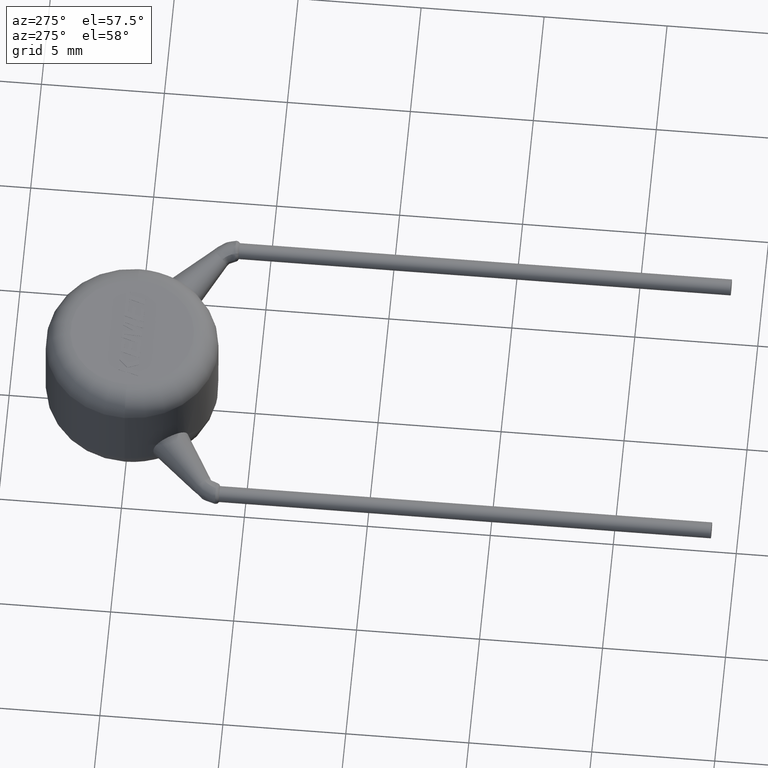
[diagram: clean part render]
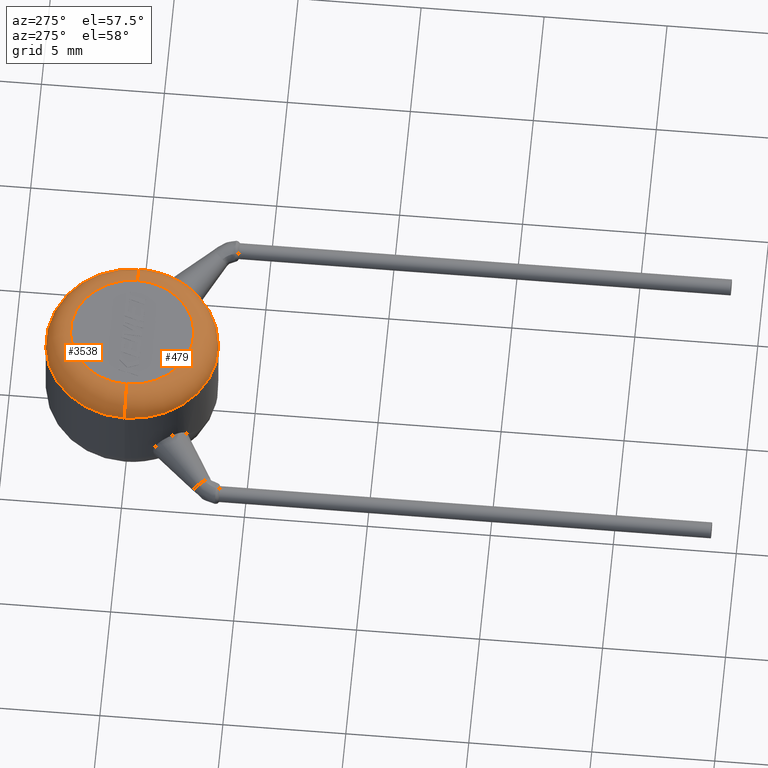
[diagram: same view with one multi-face feature highlighted, each face labeled with its STEP entity id]
A machine part, auxiliary view. The highlighted faces form ONE feature: a constant-radius fillet chain: 2 tangent blend faces with common blend radius 1 mm. The faces share edges in the B-rep.
Their STEP definitions:
[1] entity #479 (Torus):
#103 = CARTESIAN_POINT ( 'NONE',  ( 0.0000000000000000000, 0.0000000000000000000, 4.000000000000000000 ) ) ;
#122 = EDGE_LOOP ( 'NONE', ( #420, #1706, #3079, #1756, #787, #381, #3717 ) ) ;
#165 = CARTESIAN_POINT ( 'NONE',  ( 2.647007929378197400, -2.142943265732769800, 4.438028884743517600 ) ) ;
#171 = CARTESIAN_POINT ( 'NONE',  ( 3.243255533879262600, -1.296094057077863000, 4.121064896634989900 ) ) ;
#198 = CARTESIAN_POINT ( 'NONE',  ( 3.124308428701029900, -1.446657707018462500, 4.347111070492593900 ) ) ;
#381 = ORIENTED_EDGE ( 'NONE', *, *, #1070, .T. ) ;
#420 = ORIENTED_EDGE ( 'NONE', *, *, #1347, .F. ) ;
#425 = EDGE_CURVE ( 'NONE', #2062, #545, #1619, .T. ) ;
#479 = ADVANCED_FACE ( 'NONE', ( #3001 ), #2341, .T. ) ;
#480 = DIRECTION ( 'NONE',  ( 1.000000000000000000, 0.0000000000000000000, 0.0000000000000000000 ) ) ;
#526 = DIRECTION ( 'NONE',  ( -1.000000000000000000, 1.224646799147353500E-016, 0.0000000000000000000 ) ) ;
#545 = VERTEX_POINT ( 'NONE', #2828 ) ;
#561 = CARTESIAN_POINT ( 'NONE',  ( -2.500000000000000000, 3.061616997868383100E-016, 4.000000000000000000 ) ) ;
#584 = DIRECTION ( 'NONE',  ( 0.0000000000000000000, 0.0000000000000000000, -1.000000000000000000 ) ) ;
#617 = DIRECTION ( 'NONE',  ( 0.0000000000000000000, -1.000000000000000000, 0.0000000000000000000 ) ) ;
#666 = VERTEX_POINT ( 'NONE', #3219 ) ;
#731 = CIRCLE ( 'NONE', #3753, 3.500000000000000000 ) ;
#736 = CARTESIAN_POINT ( 'NONE',  ( 0.0000000000000000000, 0.0000000000000000000, 4.000000000000000000 ) ) ;
#787 = ORIENTED_EDGE ( 'NONE', *, *, #4064, .F. ) ;
#809 = CARTESIAN_POINT ( 'NONE',  ( 2.475472572420432300, -2.474274750951107800, 3.999999999999968900 ) ) ;
#838 = EDGE_CURVE ( 'NONE', #666, #2904, #3709, .T. ) ;
#860 = CARTESIAN_POINT ( 'NONE',  ( 3.274916067101236300, -1.234878436706290600, 4.000000000000000000 ) ) ;
#870 = CARTESIAN_POINT ( 'NONE',  ( 2.509829295452374900, -2.439901395481547400, 4.140103164255030800 ) ) ;
#1070 = EDGE_CURVE ( 'NONE', #2419, #545, #1952, .T. ) ;
#1126 = CARTESIAN_POINT ( 'NONE',  ( 3.199557605835435100, -1.364854437402160300, 4.244556331912546600 ) ) ;
#1133 = CARTESIAN_POINT ( 'NONE',  ( 3.243255533879262600, -1.296094057077863000, 4.121064896634989900 ) ) ;
#1347 = EDGE_CURVE ( 'NONE', #2904, #2062, #1947, .T. ) ;
#1357 = B_SPLINE_CURVE_WITH_KNOTS ( 'NONE', 3,
 ( #809, #870, #2153, #165, #1456, #1804, #1830, #198, #1126, #2519 ),
 .UNSPECIFIED., .F., .F.,
 ( 4, 2, 2, 2, 4 ),
 ( 2.086462350784822700E-007, 0.0004387179955528647400, 0.0008772273448706509800, 0.001315736694188437300, 0.001754246043506223500 ),
 .UNSPECIFIED. ) ;
#1384 = AXIS2_PLACEMENT_3D ( 'NONE', #561, #3179, #526 ) ;
#1412 = AXIS2_PLACEMENT_3D ( 'NONE', #736, #2396, #2744 ) ;
#1456 = CARTESIAN_POINT ( 'NONE',  ( 2.709895941530656000, -2.013190879445257300, 4.488390146450841600 ) ) ;
#1512 = CARTESIAN_POINT ( 'NONE',  ( -2.500000000000000000, 3.673940397442059900E-016, 5.000000000000000000 ) ) ;
#1525 = CARTESIAN_POINT ( 'NONE',  ( 3.267615193754377100, -1.254240461922986300, 4.041746018229542200 ) ) ;
#1619 = CIRCLE ( 'NONE', #3959, 2.500000000000000000 ) ;
#1697 = CARTESIAN_POINT ( 'NONE',  ( 3.274916067101236300, -1.234878436706290600, 4.000000000000000000 ) ) ;
#1706 = ORIENTED_EDGE ( 'NONE', *, *, #838, .F. ) ;
#1749 = B_SPLINE_CURVE_WITH_KNOTS ( 'NONE', 3,
 ( #1133, #2477, #1525, #860 ),
 .UNSPECIFIED., .F., .F.,
 ( 4, 4 ),
 ( 0.001754246043506223500, 0.001892293657477645600 ),
 .UNSPECIFIED. ) ;
#1754 = VERTEX_POINT ( 'NONE', #1697 ) ;
#1756 = ORIENTED_EDGE ( 'NONE', *, *, #1936, .T. ) ;
#1804 = CARTESIAN_POINT ( 'NONE',  ( 2.863479709900306900, -1.764765375614222800, 4.509682853742504000 ) ) ;
#1830 = CARTESIAN_POINT ( 'NONE',  ( 2.955658517056328500, -1.645537444783606600, 4.479644265003252600 ) ) ;
#1849 = VERTEX_POINT ( 'NONE', #171 ) ;
#1936 = EDGE_CURVE ( 'NONE', #1849, #1754, #1749, .T. ) ;
#1947 = CIRCLE ( 'NONE', #1384, 1.000000000000000000 ) ;
#1952 = CIRCLE ( 'NONE', #2720, 1.000000000000000000 ) ;
#2056 = DIRECTION ( 'NONE',  ( 1.000000000000000000, 0.0000000000000000000, 0.0000000000000000000 ) ) ;
#2062 = VERTEX_POINT ( 'NONE', #1512 ) ;
#2153 = CARTESIAN_POINT ( 'NONE',  ( 2.546750438988533400, -2.358535538674766400, 4.263246347660663500 ) ) ;
#2341 = TOROIDAL_SURFACE ( 'NONE', #2992, 2.500000000000000000, 1.000000000000000000 ) ;
#2396 = DIRECTION ( 'NONE',  ( -0.0000000000000000000, -0.0000000000000000000, -1.000000000000000000 ) ) ;
#2415 = EDGE_CURVE ( 'NONE', #666, #1849, #1357, .T. ) ;
#2419 = VERTEX_POINT ( 'NONE', #3429 ) ;
#2429 = DIRECTION ( 'NONE',  ( 1.000000000000000000, 0.0000000000000000000, 0.0000000000000000000 ) ) ;
#2477 = CARTESIAN_POINT ( 'NONE',  ( 3.257012127008531300, -1.274447525585878900, 4.082188421110591200 ) ) ;
#2519 = CARTESIAN_POINT ( 'NONE',  ( 3.243255533879262600, -1.296094057077863000, 4.121064896634989900 ) ) ;
#2633 = CARTESIAN_POINT ( 'NONE',  ( 0.0000000000000000000, 0.0000000000000000000, 5.000000000000000000 ) ) ;
#2720 = AXIS2_PLACEMENT_3D ( 'NONE', #3833, #617, #584 ) ;
#2744 = DIRECTION ( 'NONE',  ( 1.000000000000000000, 0.0000000000000000000, 0.0000000000000000000 ) ) ;
#2803 = CARTESIAN_POINT ( 'NONE',  ( 0.0000000000000000000, 0.0000000000000000000, 4.000000000000000000 ) ) ;
#2828 = CARTESIAN_POINT ( 'NONE',  ( 2.500000000000000000, 0.0000000000000000000, 5.000000000000000000 ) ) ;
#2904 = VERTEX_POINT ( 'NONE', #3588 ) ;
#2992 = AXIS2_PLACEMENT_3D ( 'NONE', #103, #3067, #2056 ) ;
#3001 = FACE_OUTER_BOUND ( 'NONE', #122, .T. ) ;
#3067 = DIRECTION ( 'NONE',  ( 0.0000000000000000000, 0.0000000000000000000, 1.000000000000000000 ) ) ;
#3079 = ORIENTED_EDGE ( 'NONE', *, *, #2415, .T. ) ;
#3179 = DIRECTION ( 'NONE',  ( 1.224646799147353200E-016, 1.000000000000000000, -0.0000000000000000000 ) ) ;
#3219 = CARTESIAN_POINT ( 'NONE',  ( 2.475472572420432300, -2.474274750951107800, 3.999999999999968900 ) ) ;
#3389 = DIRECTION ( 'NONE',  ( 0.0000000000000000000, 0.0000000000000000000, 1.000000000000000000 ) ) ;
#3429 = CARTESIAN_POINT ( 'NONE',  ( 3.500000000000000000, 4.286263797015736600E-016, 4.000000000000000000 ) ) ;
#3588 = CARTESIAN_POINT ( 'NONE',  ( -3.500000000000000000, 0.0000000000000000000, 4.000000000000000000 ) ) ;
#3709 = CIRCLE ( 'NONE', #1412, 3.500000000000000000 ) ;
#3717 = ORIENTED_EDGE ( 'NONE', *, *, #425, .F. ) ;
#3753 = AXIS2_PLACEMENT_3D ( 'NONE', #2803, #4118, #480 ) ;
#3833 = CARTESIAN_POINT ( 'NONE',  ( 2.500000000000000000, 0.0000000000000000000, 4.000000000000000000 ) ) ;
#3959 = AXIS2_PLACEMENT_3D ( 'NONE', #2633, #3389, #2429 ) ;
#4064 = EDGE_CURVE ( 'NONE', #2419, #1754, #731, .T. ) ;
#4118 = DIRECTION ( 'NONE',  ( -0.0000000000000000000, -0.0000000000000000000, -1.000000000000000000 ) ) ;
[2] entity #3538 (Torus):
#176 = TOROIDAL_SURFACE ( 'NONE', #1939, 2.500000000000000000, 1.000000000000000000 ) ;
#524 = AXIS2_PLACEMENT_3D ( 'NONE', #2750, #1413, #3400 ) ;
#526 = DIRECTION ( 'NONE',  ( -1.000000000000000000, 1.224646799147353500E-016, 0.0000000000000000000 ) ) ;
#545 = VERTEX_POINT ( 'NONE', #2828 ) ;
#561 = CARTESIAN_POINT ( 'NONE',  ( -2.500000000000000000, 3.061616997868383100E-016, 4.000000000000000000 ) ) ;
#584 = DIRECTION ( 'NONE',  ( 0.0000000000000000000, 0.0000000000000000000, -1.000000000000000000 ) ) ;
#604 = CARTESIAN_POINT ( 'NONE',  ( 0.0000000000000000000, 0.0000000000000000000, 4.000000000000000000 ) ) ;
#617 = DIRECTION ( 'NONE',  ( 0.0000000000000000000, -1.000000000000000000, 0.0000000000000000000 ) ) ;
#938 = DIRECTION ( 'NONE',  ( 0.0000000000000000000, 0.0000000000000000000, 1.000000000000000000 ) ) ;
#1070 = EDGE_CURVE ( 'NONE', #2419, #545, #1952, .T. ) ;
#1131 = AXIS2_PLACEMENT_3D ( 'NONE', #1895, #938, #1911 ) ;
#1188 = EDGE_CURVE ( 'NONE', #2904, #2419, #2054, .T. ) ;
#1243 = DIRECTION ( 'NONE',  ( 0.0000000000000000000, 0.0000000000000000000, 1.000000000000000000 ) ) ;
#1347 = EDGE_CURVE ( 'NONE', #2904, #2062, #1947, .T. ) ;
#1384 = AXIS2_PLACEMENT_3D ( 'NONE', #561, #3179, #526 ) ;
#1413 = DIRECTION ( 'NONE',  ( -0.0000000000000000000, -0.0000000000000000000, -1.000000000000000000 ) ) ;
#1512 = CARTESIAN_POINT ( 'NONE',  ( -2.500000000000000000, 3.673940397442059900E-016, 5.000000000000000000 ) ) ;
#1653 = EDGE_LOOP ( 'NONE', ( #3577, #3089, #3042, #2154 ) ) ;
#1803 = FACE_OUTER_BOUND ( 'NONE', #1653, .T. ) ;
#1895 = CARTESIAN_POINT ( 'NONE',  ( 0.0000000000000000000, 0.0000000000000000000, 5.000000000000000000 ) ) ;
#1911 = DIRECTION ( 'NONE',  ( 1.000000000000000000, 0.0000000000000000000, 0.0000000000000000000 ) ) ;
#1939 = AXIS2_PLACEMENT_3D ( 'NONE', #604, #1243, #4231 ) ;
#1947 = CIRCLE ( 'NONE', #1384, 1.000000000000000000 ) ;
#1952 = CIRCLE ( 'NONE', #2720, 1.000000000000000000 ) ;
#2054 = CIRCLE ( 'NONE', #524, 3.500000000000000000 ) ;
#2062 = VERTEX_POINT ( 'NONE', #1512 ) ;
#2154 = ORIENTED_EDGE ( 'NONE', *, *, #1070, .F. ) ;
#2419 = VERTEX_POINT ( 'NONE', #3429 ) ;
#2720 = AXIS2_PLACEMENT_3D ( 'NONE', #3833, #617, #584 ) ;
#2750 = CARTESIAN_POINT ( 'NONE',  ( 0.0000000000000000000, 0.0000000000000000000, 4.000000000000000000 ) ) ;
#2828 = CARTESIAN_POINT ( 'NONE',  ( 2.500000000000000000, 0.0000000000000000000, 5.000000000000000000 ) ) ;
#2904 = VERTEX_POINT ( 'NONE', #3588 ) ;
#3042 = ORIENTED_EDGE ( 'NONE', *, *, #3371, .F. ) ;
#3089 = ORIENTED_EDGE ( 'NONE', *, *, #1347, .T. ) ;
#3179 = DIRECTION ( 'NONE',  ( 1.224646799147353200E-016, 1.000000000000000000, -0.0000000000000000000 ) ) ;
#3370 = CIRCLE ( 'NONE', #1131, 2.500000000000000000 ) ;
#3371 = EDGE_CURVE ( 'NONE', #545, #2062, #3370, .T. ) ;
#3400 = DIRECTION ( 'NONE',  ( 1.000000000000000000, 0.0000000000000000000, 0.0000000000000000000 ) ) ;
#3429 = CARTESIAN_POINT ( 'NONE',  ( 3.500000000000000000, 4.286263797015736600E-016, 4.000000000000000000 ) ) ;
#3538 = ADVANCED_FACE ( 'NONE', ( #1803 ), #176, .T. ) ;
#3577 = ORIENTED_EDGE ( 'NONE', *, *, #1188, .F. ) ;
#3588 = CARTESIAN_POINT ( 'NONE',  ( -3.500000000000000000, 0.0000000000000000000, 4.000000000000000000 ) ) ;
#3833 = CARTESIAN_POINT ( 'NONE',  ( 2.500000000000000000, 0.0000000000000000000, 4.000000000000000000 ) ) ;
#4231 = DIRECTION ( 'NONE',  ( 1.000000000000000000, 0.0000000000000000000, 0.0000000000000000000 ) ) ;